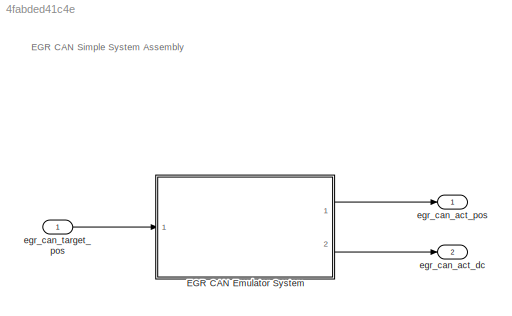
MODEL slx_4fabded41c4e
KIND model
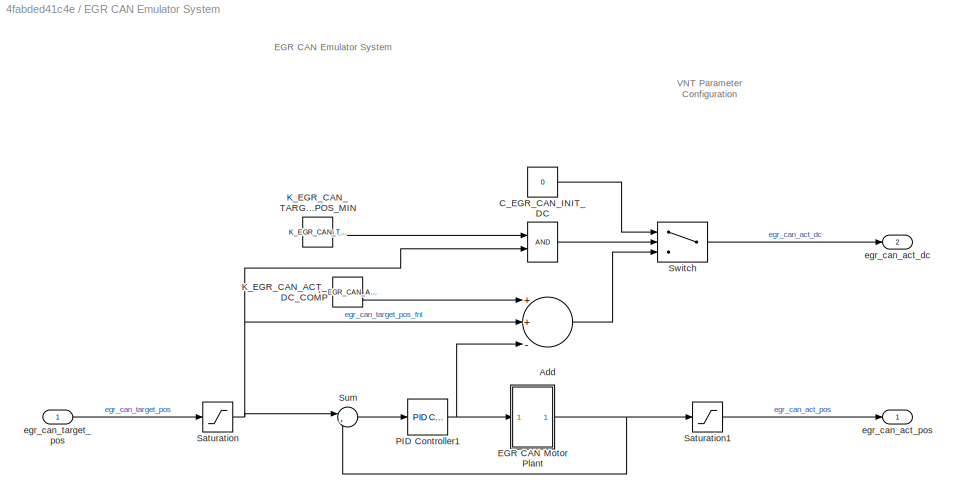
BLOCK [SubSystem] EGR CAN Emulator System
  FunctionWithSeparateData = off
  MaskHideContents = off
  MinAlgLoopOccurrences = off
  Opaque = off
  Ports = [1, 2]
  PropExecContextOutsideSubsystem = off
  RTWSystemCode = Auto
  RequestExecContextInheritance = off
BLOCK [RelationalOperator] EGR CAN Emulator System/ 
  InputSameDT = off
  OutDataTypeStr = boolean
  Ports = [2, 1]
BLOCK [Sum] EGR CAN Emulator System/Add
  InputSameDT = off
  Inputs = ++-
  OutDataTypeStr = Inherit: Inherit via internal rule
  Ports = [3, 1]
  SaturateOnIntegerOverflow = off
BLOCK [Constant] EGR CAN Emulator System/C_EGR_CAN_INIT_DC
  Value = 0
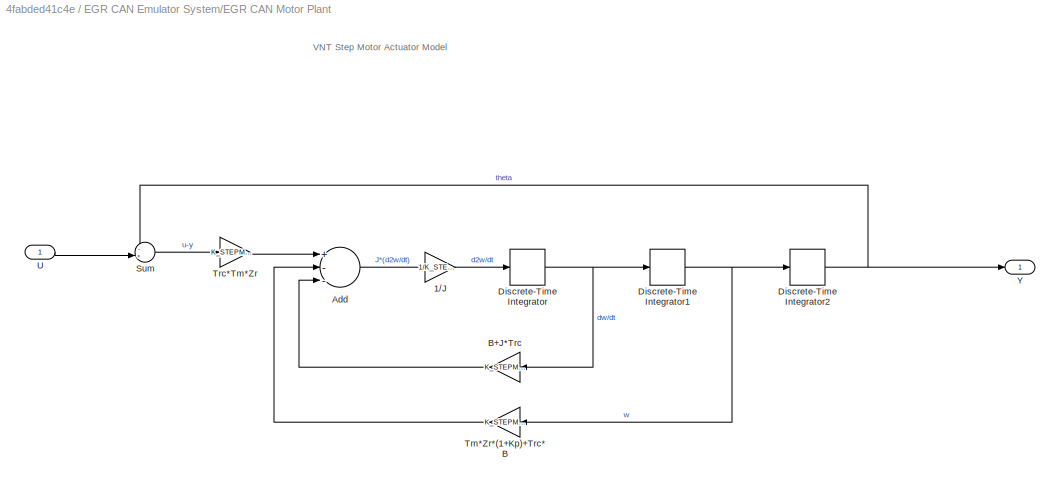
BLOCK [SubSystem] EGR CAN Emulator System/EGR CAN Motor Plant
  FunctionWithSeparateData = off
  MaskHideContents = off
  MinAlgLoopOccurrences = off
  Opaque = off
  Ports = [1, 1]
  PropExecContextOutsideSubsystem = off
  RTWSystemCode = Auto
  RequestExecContextInheritance = off
BLOCK [Gain] EGR CAN Emulator System/EGR CAN Motor Plant/1//J
  Gain = 1/K_STEPM_INERTIA
  OutDataTypeStr = Inherit: Inherit via internal rule
  ParamDataTypeStr = Inherit: Inherit via internal rule
  SaturateOnIntegerOverflow = off
BLOCK [Sum] EGR CAN Emulator System/EGR CAN Motor Plant/Add
  InputSameDT = off
  Inputs = +--
  OutDataTypeStr = Inherit: Inherit via internal rule
  Ports = [3, 1]
  SaturateOnIntegerOverflow = off
BLOCK [Gain] EGR CAN Emulator System/EGR CAN Motor Plant/B+J*Trc
  Gain = K_STEPM_DAMPING_COEFF+K_STEPM_INERTIA*C_STEPM_ELEC_TIM_COEFF
  OutDataTypeStr = Inherit: Inherit via internal rule
  ParamDataTypeStr = Inherit: Inherit via internal rule
  SaturateOnIntegerOverflow = off
BLOCK [DiscreteIntegrator] EGR CAN Emulator System/EGR CAN Motor Plant/Discrete-Time Integrator
  ICPrevOutput = DiscIntNeverNeededParam
  ICPrevScaledInput = DiscIntNeverNeededParam
  Ports = [1, 1]
  SampleTime = Ts
BLOCK [DiscreteIntegrator] EGR CAN Emulator System/EGR CAN Motor Plant/Discrete-Time Integrator1
  ICPrevOutput = DiscIntNeverNeededParam
  ICPrevScaledInput = DiscIntNeverNeededParam
  Ports = [1, 1]
  SampleTime = Ts
BLOCK [DiscreteIntegrator] EGR CAN Emulator System/EGR CAN Motor Plant/Discrete-Time Integrator2
  ICPrevOutput = DiscIntNeverNeededParam
  ICPrevScaledInput = DiscIntNeverNeededParam
  Ports = [1, 1]
  SampleTime = Ts
BLOCK [Sum] EGR CAN Emulator System/EGR CAN Motor Plant/Sum
  IconShape = round
  InputSameDT = off
  Inputs = -+|
  OutDataTypeStr = Inherit: Inherit via internal rule
  Ports = [2, 1]
  SaturateOnIntegerOverflow = off
BLOCK [Gain] EGR CAN Emulator System/EGR CAN Motor Plant/Tm*Zr*(1+Kp)+Trc*B
  Gain = K_STEPM_TF*K_STEPM_STEP_NUM*(1+K_STEPM_SELF_DAMPING_COEFF)+C_STEPM_ELEC_TIM_COEFF*K_STEPM_DAMPING_COEFF
  OutDataTypeStr = Inherit: Inherit via internal rule
  ParamDataTypeStr = Inherit: Inherit via internal rule
  SaturateOnIntegerOverflow = off
BLOCK [Gain] EGR CAN Emulator System/EGR CAN Motor Plant/Trc*Tm*Zr
  Gain = K_STEPM_TF*C_STEPM_ELEC_TIM_COEFF*K_STEPM_STEP_NUM
  OutDataTypeStr = Inherit: Inherit via internal rule
  ParamDataTypeStr = Inherit: Inherit via internal rule
  SaturateOnIntegerOverflow = off
BLOCK [Inport] EGR CAN Emulator System/EGR CAN Motor Plant/U
  IconDisplay = Port number
BLOCK [Outport] EGR CAN Emulator System/EGR CAN Motor Plant/Y
  IconDisplay = Port number
BLOCK [Constant] EGR CAN Emulator System/K_EGR_CAN_ACT_DC_COMP
  Value = K_EGR_CAN_ACT_DC_COMP
BLOCK [Constant] EGR CAN Emulator System/K_EGR_CAN_TARGET_POS_MIN
  Value = K_EGR_CAN_TARGET_POS_MIN
BLOCK [Reference] EGR CAN Emulator System/PID Controller1  REF=simulink/Continuous/PID Controller
  AntiWindupMode = none
  Controller = PID
  D = K_PID_D_TERM
  DOutDataTypeStr = Inherit: Inherit via internal rule
  DOutMax = []
  DOutMin = []
  DParamDataTypeStr = Inherit: Inherit via internal rule
  DParamMax = []
  DParamMin = []
  ExternalReset = none
  FilterContinuousStateAttributes = ''
  FilterMethod = Forward Euler
  FilterOutDataTypeStr = Inherit: Inherit via internal rule
  FilterOutMax = []
  FilterOutMin = []
  FilterRTWStateStorageClass = Auto
  FilterStateMustResolveToSignalObject = off
  Form = Ideal
  I = K_PID_I_TERM
  IOutDataTypeStr = Inherit: Inherit via internal rule
  IOutMax = []
  IOutMin = []
  IParamDataTypeStr = Inherit: Inherit via internal rule
  IParamMax = []
  IParamMin = []
  IgnoreLimit = off
  InitialConditionForFilter = 0
  InitialConditionForIntegrator = 0
  InitialConditionSource = internal
  IntegratorContinuousStateAttributes = ''
  IntegratorMethod = Forward Euler
  IntegratorOutDataTypeStr = Inherit: Inherit via internal rule
  IntegratorOutMax = []
  IntegratorOutMin = []
  IntegratorRTWStateStorageClass = Auto
  IntegratorStateMustResolveToSignalObject = off
  Kb = 1
  KbOutDataTypeStr = Inherit: Inherit via internal rule
  KbOutMax = []
  KbOutMin = []
  KbParamDataTypeStr = Inherit: Inherit via internal rule
  KbParamMax = []
  KbParamMin = []
  Kt = 1
  KtOutDataTypeStr = Inherit: Inherit via internal rule
  KtOutMax = []
  KtOutMin = []
  KtParamDataTypeStr = Inherit: Inherit via internal rule
  KtParamMax = []
  KtParamMin = []
  LimitOutput = off
  LinearizeAsGain = on
  LockScale = off
  LowerSaturationLimit = -inf
  N = 100
  NOutDataTypeStr = Inherit: Inherit via internal rule
  NOutMax = []
  NOutMin = []
  NParamDataTypeStr = Inherit: Inherit via internal rule
  NParamMax = []
  NParamMin = []
  P = K_PID_P_TERM
  POutDataTypeStr = Inherit: Inherit via internal rule
  POutMax = []
  POutMin = []
  PParamDataTypeStr = Inherit: Inherit via internal rule
  PParamMax = []
  PParamMin = []
  Ports = [1, 1]
  RndMeth = Floor
  SampleTime = Ts
  SaturateOnIntegerOverflow = off
  SaturationOutDataTypeStr = Inherit: Same as input
  SaturationOutMax = []
  SaturationOutMin = []
  SourceBlock = simulink/Continuous/PID Controller
  SourceType = PID 1dof
  SumAccumDataTypeStr = Inherit: Inherit via internal rule
  SumDAccumDataTypeStr = Inherit: Inherit via internal rule
  SumDOutDataTypeStr = Inherit: Inherit via internal rule
  SumDOutMax = []
  SumDOutMin = []
  SumI1AccumDataTypeStr = Inherit: Inherit via internal rule
  SumI1OutDataTypeStr = Inherit: Inherit via internal rule
  SumI1OutMax = []
  SumI1OutMin = []
  SumI2AccumDataTypeStr = Inherit: Inherit via internal rule
  SumI2OutDataTypeStr = Inherit: Inherit via internal rule
  SumI2OutMax = []
  SumI2OutMin = []
  SumI3AccumDataTypeStr = Inherit: Inherit via internal rule
  SumI3OutDataTypeStr = Inherit: Inherit via internal rule
  SumI3OutMax = []
  SumI3OutMin = []
  SumOutDataTypeStr = Inherit: Inherit via internal rule
  SumOutMax = []
  SumOutMin = []
  TimeDomain = Discrete-time
  TrackingMode = off
  UpperSaturationLimit = inf
  ZeroCross = on
BLOCK [Saturate] EGR CAN Emulator System/Saturation
  InputPortMap = u0
  LowerLimit = K_EGR_CAN_TARGET_POS_MIN
  Ports = [1, 1]
  UpperLimit = K_EGR_CAN_TARGET_POS_MAX
BLOCK [Saturate] EGR CAN Emulator System/Saturation1
  InputPortMap = u0
  LowerLimit = K_EGR_CAN_ACT_POS_MIN
  Ports = [1, 1]
  UpperLimit = K_EGR_CAN_ACT_POS_MAX
BLOCK [Sum] EGR CAN Emulator System/Sum
  IconShape = round
  InputSameDT = off
  Inputs = |+-
  OutDataTypeStr = Inherit: Inherit via internal rule
  Ports = [2, 1]
  SaturateOnIntegerOverflow = off
BLOCK [Switch] EGR CAN Emulator System/Switch
  Criteria = u2 ~= 0
  InputSameDT = off
  SaturateOnIntegerOverflow = off
BLOCK [Outport] EGR CAN Emulator System/egr_can_act_dc
  IconDisplay = Port number
  Port = 2
BLOCK [Outport] EGR CAN Emulator System/egr_can_act_pos
  IconDisplay = Port number
BLOCK [Inport] EGR CAN Emulator System/egr_can_target_pos
  IconDisplay = Port number
BLOCK [Outport] egr_can_act_dc
  IconDisplay = Port number
  Port = 2
BLOCK [Outport] egr_can_act_pos
  IconDisplay = Port number
BLOCK [Inport] egr_can_target_pos
  IconDisplay = Port number
ANNOTATION (root): EGR CAN Simple System Assembly
ANNOTATION EGR CAN Emulator System: EGR CAN Emulator System
ANNOTATION EGR CAN Emulator System: VNT Parameter Configuration
ANNOTATION EGR CAN Emulator System/EGR CAN Motor Plant: VNT Step Motor Actuator Model
LINE EGR CAN Emulator System/ :1 -> EGR CAN Emulator System/Switch:2
LINE EGR CAN Emulator System/Add:1 -> EGR CAN Emulator System/Switch:3
LINE EGR CAN Emulator System/C_EGR_CAN_INIT_DC:1 -> EGR CAN Emulator System/Switch:1
LINE EGR CAN Emulator System/EGR CAN Motor Plant/1//J:1 -> EGR CAN Emulator System/EGR CAN Motor Plant/Discrete-Time Integrator:1
LINE EGR CAN Emulator System/EGR CAN Motor Plant/Add:1 -> EGR CAN Emulator System/EGR CAN Motor Plant/1//J:1
LINE EGR CAN Emulator System/EGR CAN Motor Plant/B+J*Trc:1 -> EGR CAN Emulator System/EGR CAN Motor Plant/Add:3
NET EGR CAN Emulator System/EGR CAN Motor Plant/Discrete-Time Integrator1:1 -> EGR CAN Emulator System/EGR CAN Motor Plant/Discrete-Time Integrator2:1, EGR CAN Emulator System/EGR CAN Motor Plant/Tm*Zr*(1+Kp)+Trc*B:1
NET EGR CAN Emulator System/EGR CAN Motor Plant/Discrete-Time Integrator2:1 -> EGR CAN Emulator System/EGR CAN Motor Plant/Sum:1, EGR CAN Emulator System/EGR CAN Motor Plant/Y:1
NET EGR CAN Emulator System/EGR CAN Motor Plant/Discrete-Time Integrator:1 -> EGR CAN Emulator System/EGR CAN Motor Plant/B+J*Trc:1, EGR CAN Emulator System/EGR CAN Motor Plant/Discrete-Time Integrator1:1
LINE EGR CAN Emulator System/EGR CAN Motor Plant/Sum:1 -> EGR CAN Emulator System/EGR CAN Motor Plant/Trc*Tm*Zr:1
LINE EGR CAN Emulator System/EGR CAN Motor Plant/Tm*Zr*(1+Kp)+Trc*B:1 -> EGR CAN Emulator System/EGR CAN Motor Plant/Add:2
LINE EGR CAN Emulator System/EGR CAN Motor Plant/Trc*Tm*Zr:1 -> EGR CAN Emulator System/EGR CAN Motor Plant/Add:1
LINE EGR CAN Emulator System/EGR CAN Motor Plant/U:1 -> EGR CAN Emulator System/EGR CAN Motor Plant/Sum:2
NET EGR CAN Emulator System/EGR CAN Motor Plant:1 -> EGR CAN Emulator System/Saturation1:1, EGR CAN Emulator System/Sum:2
LINE EGR CAN Emulator System/K_EGR_CAN_ACT_DC_COMP:1 -> EGR CAN Emulator System/Add:1
LINE EGR CAN Emulator System/K_EGR_CAN_TARGET_POS_MIN:1 -> EGR CAN Emulator System/ :1
NET EGR CAN Emulator System/PID Controller1:1 -> EGR CAN Emulator System/Add:3, EGR CAN Emulator System/EGR CAN Motor Plant:1
LINE EGR CAN Emulator System/Saturation1:1 -> EGR CAN Emulator System/egr_can_act_pos:1
NET EGR CAN Emulator System/Saturation:1 -> EGR CAN Emulator System/ :2, EGR CAN Emulator System/Add:2, EGR CAN Emulator System/Sum:1
LINE EGR CAN Emulator System/Sum:1 -> EGR CAN Emulator System/PID Controller1:1
LINE EGR CAN Emulator System/Switch:1 -> EGR CAN Emulator System/egr_can_act_dc:1
LINE EGR CAN Emulator System/egr_can_target_pos:1 -> EGR CAN Emulator System/Saturation:1
LINE EGR CAN Emulator System:1 -> egr_can_act_pos:1
LINE EGR CAN Emulator System:2 -> egr_can_act_dc:1
LINE egr_can_target_pos:1 -> EGR CAN Emulator System:1
note: NET lines group one-source signal fan-out (src -> all destinations, sorted); 1:1 wires keep LINE
